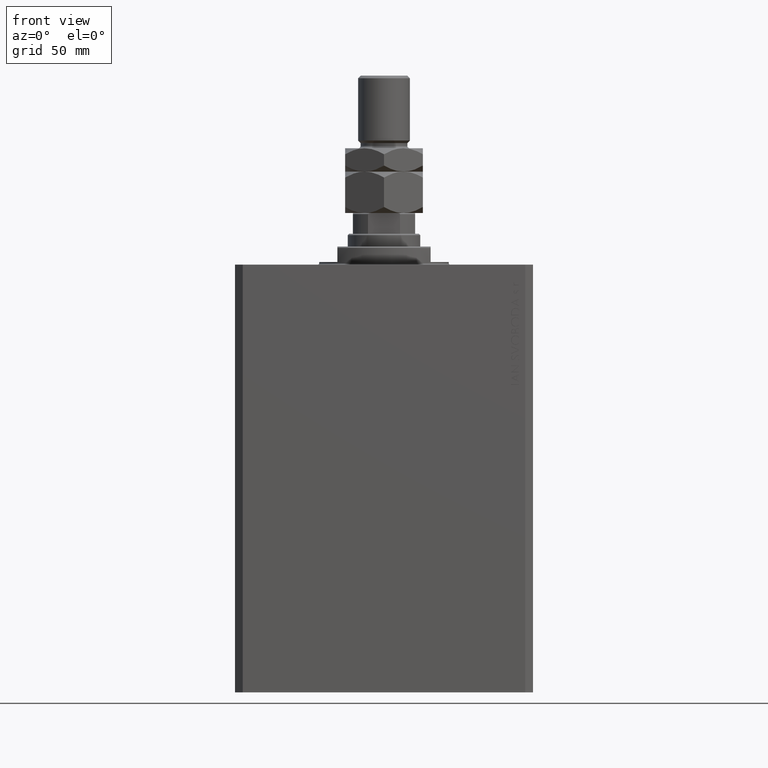
[diagram: clean part render]
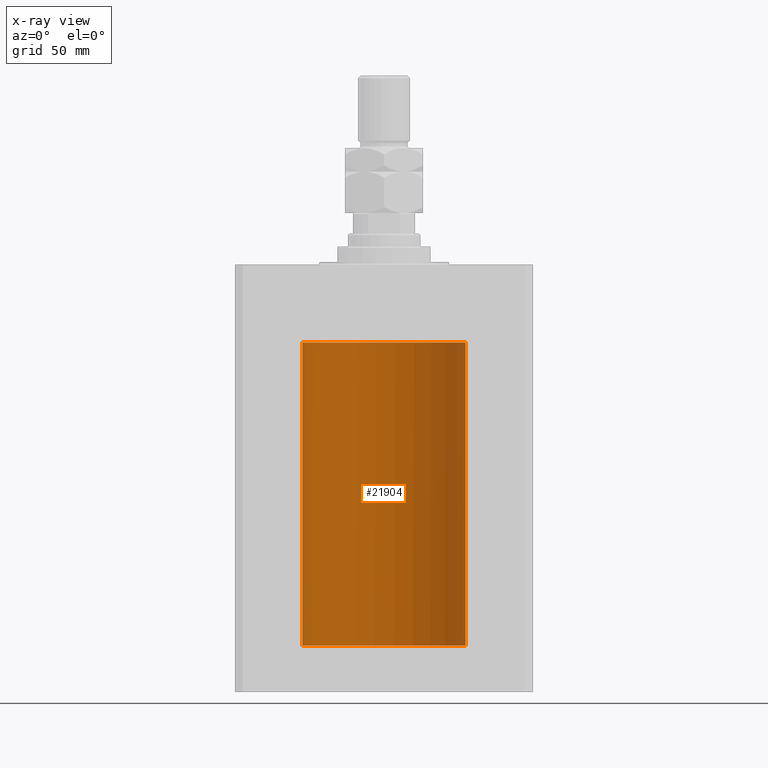
[diagram: x-ray — body ghosted, one internal face saturated and labeled with its STEP entity id]
A machine part, front view, then the same camera in x-ray: the body is ghosted and one INTERNAL B-rep face — a face not visible from any outside direction — is saturated and labeled: STEP entity #21904.
In plain terms, the highlighted cylindrical surface (partial cylindrical patch) has radius 31.5 mm, axis along (0, 0, 1).
Its self-contained STEP definition (entity closure, byte-faithful):
#6 = CARTESIAN_POINT ( 'NONE',  ( 31.50000000000000000, 0.000000000000000000, -147.1000000000000227 ) ) ;
#195 = AXIS2_PLACEMENT_3D ( 'NONE', #39256, #8884, #42455 ) ;
#436 = CARTESIAN_POINT ( 'NONE',  ( -31.50000000000000000, 3.857542963677526976E-15, -30.99999999999999645 ) ) ;
#1424 = CARTESIAN_POINT ( 'NONE',  ( 31.50000000000000711, 0.1322106156816646172, -138.0000000000000568 ) ) ;
#1615 = CARTESIAN_POINT ( 'NONE',  ( 31.47243113015943550, 1.320912165297383201, -134.4924797776056948 ) ) ;
#1861 = CARTESIAN_POINT ( 'NONE',  ( 31.47656038302703507, 1.219789706799898843, -134.4096921557544988 ) ) ;
#1914 = CARTESIAN_POINT ( 'NONE',  ( 31.45161214644910075, 1.748160858796773631, -137.0059024499661291 ) ) ;
#2297 = CARTESIAN_POINT ( 'NONE',  ( 0.000000000000000000, 0.000000000000000000, -147.1000000000000227 ) ) ;
#2881 = VERTEX_POINT ( 'NONE', #27854 ) ;
#3523 = ORIENTED_EDGE ( 'NONE', *, *, #20452, .T. ) ;
#4015 = B_SPLINE_CURVE_WITH_KNOTS ( 'NONE', 3,
 ( #27589, #9326, #38962, #46617, #13027, #16480, #28080, #31546, #35733, #47111 ),
 .UNSPECIFIED., .F., .F.,
 ( 4, 2, 2, 2, 4 ),
 ( 0.000000000000000000, 0.0004921177670202515984, 0.0009842355340405031967, 0.001476353301060754795, 0.001968471068081006393 ),
 .UNSPECIFIED. ) ;
#4868 = CARTESIAN_POINT ( 'NONE',  ( 31.48424227690099642, 1.002158581476550347, -137.7357332860677843 ) ) ;
#5133 = CARTESIAN_POINT ( 'NONE',  ( 31.50000000000000000, 0.000000000000000000, -147.1000000000000227 ) ) ;
#6234 = FACE_OUTER_BOUND ( 'NONE', #7198, .T. ) ;
#6799 = VECTOR ( 'NONE', #18365, 1000.000000000000000 ) ;
#7138 = AXIS2_PLACEMENT_3D ( 'NONE', #45350, #27051, #41873 ) ;
#7198 = EDGE_LOOP ( 'NONE', ( #13873, #31766, #38366, #3523, #43845, #22568, #15429, #18138 ) ) ;
#7247 = LINE ( 'NONE', #28989, #6799 ) ;
#7900 = VERTEX_POINT ( 'NONE', #24370 ) ;
#8027 = CARTESIAN_POINT ( 'NONE',  ( 31.43644381923627051, 2.000000000000391687, -135.8695436863447412 ) ) ;
#8884 = DIRECTION ( 'NONE',  ( 0.000000000000000000, 0.000000000000000000, 1.000000000000000000 ) ) ;
#9072 = CARTESIAN_POINT ( 'NONE',  ( 31.45992223434330981, 1.599182806012582558, -137.2291100714819265 ) ) ;
#9318 = CARTESIAN_POINT ( 'NONE',  ( 31.43989559156923264, 1.947546710638696110, -136.5243738522823378 ) ) ;
#9326 = CARTESIAN_POINT ( 'NONE',  ( -31.46054086632929625, 1.578847945691098875, -30.23891272917829909 ) ) ;
#9405 = EDGE_CURVE ( 'NONE', #40691, #36000, #39948, .T. ) ;
#9693 = EDGE_CURVE ( 'NONE', #40691, #47239, #28424, .T. ) ;
#10363 = CARTESIAN_POINT ( 'NONE',  ( 31.43644381923627051, 2.000000000000389910, -136.0000000000000000 ) ) ;
#10437 = DIRECTION ( 'NONE',  ( 1.000000000000000000, 0.000000000000000000, 0.000000000000000000 ) ) ;
#11236 = DIRECTION ( 'NONE',  ( -0.000000000000000000, -0.000000000000000000, 1.000000000000000000 ) ) ;
#11499 = CARTESIAN_POINT ( 'NONE',  ( 31.43644381923627051, 2.000000000000389910, -136.0000000000000000 ) ) ;
#13027 = CARTESIAN_POINT ( 'NONE',  ( -31.48136522371477852, 1.092934591159441693, -30.68296962504550507 ) ) ;
#13211 = CARTESIAN_POINT ( 'NONE',  ( 31.50000000000000000, -8.369814204394935255E-24, -134.0000000000000000 ) ) ;
#13873 = ORIENTED_EDGE ( 'NONE', *, *, #24202, .F. ) ;
#14965 = CARTESIAN_POINT ( 'NONE',  ( 31.44280827872263018, 1.897980201673368450, -135.3559202626804563 ) ) ;
#15429 = ORIENTED_EDGE ( 'NONE', *, *, #36045, .T. ) ;
#16229 = CARTESIAN_POINT ( 'NONE',  ( 31.49600115550921231, 0.5179422407981826293, -137.9361644646872378 ) ) ;
#16418 = CARTESIAN_POINT ( 'NONE',  ( 31.48420706794360058, 1.003217712170305864, -134.2649149328429132 ) ) ;
#16480 = CARTESIAN_POINT ( 'NONE',  ( -31.49006417643538569, 0.8041893641746242771, -30.83852447520479956 ) ) ;
#16667 = CARTESIAN_POINT ( 'NONE',  ( 31.49916210907646175, 0.2630769646869162703, -134.0130766648357508 ) ) ;
#16908 = CARTESIAN_POINT ( 'NONE',  ( 31.46404119587053927, 1.507594711990238201, -134.6791728524376310 ) ) ;
#17596 = DIRECTION ( 'NONE',  ( -0.000000000000000000, -0.000000000000000000, 1.000000000000000000 ) ) ;
#18138 = ORIENTED_EDGE ( 'NONE', *, *, #21338, .T. ) ;
#18365 = DIRECTION ( 'NONE',  ( -0.000000000000000000, -0.000000000000000000, 1.000000000000000000 ) ) ;
#18879 = LINE ( 'NONE', #38136, #45875 ) ;
#19088 = EDGE_CURVE ( 'NONE', #21145, #2881, #28865, .T. ) ;
#20127 = CARTESIAN_POINT ( 'NONE',  ( 31.45991621267056004, 1.590260824275577356, -134.7801457396745093 ) ) ;
#20430 = CARTESIAN_POINT ( 'NONE',  ( 31.43644381923627051, 2.000000000000389910, -136.0000000000000000 ) ) ;
#20452 = EDGE_CURVE ( 'NONE', #36000, #21145, #44192, .T. ) ;
#21145 = VERTEX_POINT ( 'NONE', #10363 ) ;
#21158 = CARTESIAN_POINT ( 'NONE',  ( -31.45568311132346295, 1.670329308849017202, -30.10000000000000142 ) ) ;
#21338 = EDGE_CURVE ( 'NONE', #22969, #41010, #4015, .T. ) ;
#21904 = ADVANCED_FACE ( 'NONE', ( #6234 ), #32906, .F. ) ;
#22568 = ORIENTED_EDGE ( 'NONE', *, *, #34249, .T. ) ;
#22969 = VERTEX_POINT ( 'NONE', #21158 ) ;
#24202 = EDGE_CURVE ( 'NONE', #47239, #41010, #7247, .T. ) ;
#24370 = CARTESIAN_POINT ( 'NONE',  ( 31.50000000000000000, 0.000000000000000000, -30.10000000000000142 ) ) ;
#27051 = DIRECTION ( 'NONE',  ( 0.000000000000000000, 0.000000000000000000, 1.000000000000000000 ) ) ;
#27333 = CARTESIAN_POINT ( 'NONE',  ( 31.50000000000000000, -5.244345426788806144E-15, -138.0000000000000000 ) ) ;
#27589 = CARTESIAN_POINT ( 'NONE',  ( -31.45568311132346295, 1.670329308849017202, -30.10000000000000142 ) ) ;
#27765 = CARTESIAN_POINT ( 'NONE',  ( 31.50000000000000711, 0.1305169792915967519, -133.9999999999999432 ) ) ;
#27823 = CARTESIAN_POINT ( 'NONE',  ( 31.49916827061299784, 0.2622045237009093532, -137.9870193222189130 ) ) ;
#27854 = CARTESIAN_POINT ( 'NONE',  ( 31.50000000000000000, -8.369814204394935255E-24, -134.0000000000000000 ) ) ;
#28080 = CARTESIAN_POINT ( 'NONE',  ( -31.49373304996191791, 0.6483417414291828829, -30.89916737967284988 ) ) ;
#28424 = CIRCLE ( 'NONE', #7138, 31.50000000000000000 ) ;
#28865 = B_SPLINE_CURVE_WITH_KNOTS ( 'NONE', 3,
 ( #11499, #8027, #48793, #38159, #14965, #30006, #45089, #20127, #16908, #1615, #1861, #16418, #38896, #47046, #31970, #16667, #27765, #13211 ),
 .UNSPECIFIED., .F., .F.,
 ( 4, 2, 2, 2, 2, 2, 2, 2, 4 ),
 ( 0.003127956870251400769, 0.003518772842989208692, 0.003909588815727015748, 0.004300404788464823672, 0.004691220761202631595, 0.005082036733940439518, 0.005472852706678247442, 0.005863668679416054498, 0.006254484652153862421 ),
 .UNSPECIFIED. ) ;
#28989 = CARTESIAN_POINT ( 'NONE',  ( -31.50000000000000000, 3.857637417314162689E-15, -147.1000000000000227 ) ) ;
#30006 = CARTESIAN_POINT ( 'NONE',  ( 31.44869941755756315, 1.797728078038221655, -135.1138051504310056 ) ) ;
#31546 = CARTESIAN_POINT ( 'NONE',  ( -31.49869211956624682, 0.3285775292346077570, -30.97970213844783416 ) ) ;
#31766 = ORIENTED_EDGE ( 'NONE', *, *, #9693, .F. ) ;
#31970 = CARTESIAN_POINT ( 'NONE',  ( 31.49597888575898708, 0.5193621964009151881, -134.0641961002934295 ) ) ;
#32533 = DIRECTION ( 'NONE',  ( -0.000000000000000000, -0.000000000000000000, 1.000000000000000000 ) ) ;
#32906 = CYLINDRICAL_SURFACE ( 'NONE', #47743, 31.50000000000000000 ) ;
#33928 = VECTOR ( 'NONE', #32533, 1000.000000000000000 ) ;
#34249 = EDGE_CURVE ( 'NONE', #2881, #7900, #18879, .T. ) ;
#34561 = CARTESIAN_POINT ( 'NONE',  ( 31.50000000000000000, -5.244345426788806144E-15, -138.0000000000000000 ) ) ;
#34988 = CARTESIAN_POINT ( 'NONE',  ( 31.47656968928225751, 1.219587704424718533, -137.5905023401450933 ) ) ;
#35725 = CARTESIAN_POINT ( 'NONE',  ( 31.48773468680478160, 0.8872681233992232297, -137.7972062396702313 ) ) ;
#35733 = CARTESIAN_POINT ( 'NONE',  ( -31.50000000000000000, 0.1657740143102494623, -31.00000000000000711 ) ) ;
#36000 = VERTEX_POINT ( 'NONE', #34561 ) ;
#36045 = EDGE_CURVE ( 'NONE', #7900, #22969, #45130, .T. ) ;
#38136 = CARTESIAN_POINT ( 'NONE',  ( 31.50000000000000000, 0.000000000000000000, -147.1000000000000227 ) ) ;
#38159 = CARTESIAN_POINT ( 'NONE',  ( 31.44047330683569186, 1.935793094480593224, -135.4805747813048526 ) ) ;
#38366 = ORIENTED_EDGE ( 'NONE', *, *, #9405, .T. ) ;
#38896 = CARTESIAN_POINT ( 'NONE',  ( 31.48776132734998967, 0.8863252928784803863, -134.2023288708493283 ) ) ;
#38962 = CARTESIAN_POINT ( 'NONE',  ( -31.46581137650060356, 1.472225318046969322, -30.36367113479343161 ) ) ;
#39256 = CARTESIAN_POINT ( 'NONE',  ( 0.000000000000000000, 0.000000000000000000, -30.10000000000000142 ) ) ;
#39948 = LINE ( 'NONE', #5133, #33928 ) ;
#40691 = VERTEX_POINT ( 'NONE', #6 ) ;
#41010 = VERTEX_POINT ( 'NONE', #436 ) ;
#41873 = DIRECTION ( 'NONE',  ( 1.000000000000000000, 0.000000000000000000, 0.000000000000000000 ) ) ;
#42455 = DIRECTION ( 'NONE',  ( 1.000000000000000000, 0.000000000000000000, 0.000000000000000000 ) ) ;
#42894 = CARTESIAN_POINT ( 'NONE',  ( 31.49362851683618914, 0.6450141649083286355, -137.8976700761137124 ) ) ;
#43138 = CARTESIAN_POINT ( 'NONE',  ( 31.47236118406704364, 1.322499398534440429, -137.5059945699081823 ) ) ;
#43845 = ORIENTED_EDGE ( 'NONE', *, *, #19088, .T. ) ;
#44192 = B_SPLINE_CURVE_WITH_KNOTS ( 'NONE', 3,
 ( #27333, #1424, #27823, #16229, #42894, #35725, #4868, #34988, #43138, #9072, #1914, #9318, #46361, #20430 ),
 .UNSPECIFIED., .F., .F.,
 ( 4, 2, 2, 2, 2, 2, 4 ),
 ( 5.096331421419789159E-18, 0.0003909946087814292703, 0.0007819892175628534448, 0.001172983826344277999, 0.001563978435125702553, 0.002345967652688551661, 0.003127956870251400769 ),
 .UNSPECIFIED. ) ;
#45089 = CARTESIAN_POINT ( 'NONE',  ( 31.45226167581968113, 1.735077252816690230, -134.9967648169954657 ) ) ;
#45130 = CIRCLE ( 'NONE', #195, 31.50000000000000000 ) ;
#45350 = CARTESIAN_POINT ( 'NONE',  ( 0.000000000000000000, 0.000000000000000000, -147.1000000000000227 ) ) ;
#45875 = VECTOR ( 'NONE', #11236, 1000.000000000000000 ) ;
#45926 = CARTESIAN_POINT ( 'NONE',  ( -31.50000000000000000, 3.857637417314162689E-15, -147.1000000000000227 ) ) ;
#46361 = CARTESIAN_POINT ( 'NONE',  ( 31.43644381923627762, 2.000000000000387246, -136.2610318865086185 ) ) ;
#46617 = CARTESIAN_POINT ( 'NONE',  ( -31.47622270810187928, 1.229689797707025578, -30.58584657277510388 ) ) ;
#47046 = CARTESIAN_POINT ( 'NONE',  ( 31.49364883223205425, 0.6440257487116654023, -134.1019945078124351 ) ) ;
#47111 = CARTESIAN_POINT ( 'NONE',  ( -31.50000000000000000, 3.857542963677526976E-15, -30.99999999999999645 ) ) ;
#47239 = VERTEX_POINT ( 'NONE', #45926 ) ;
#47743 = AXIS2_PLACEMENT_3D ( 'NONE', #2297, #17596, #10437 ) ;
#48793 = CARTESIAN_POINT ( 'NONE',  ( 31.43728213781475489, 1.986944500966170146, -135.7370380017273135 ) ) ;